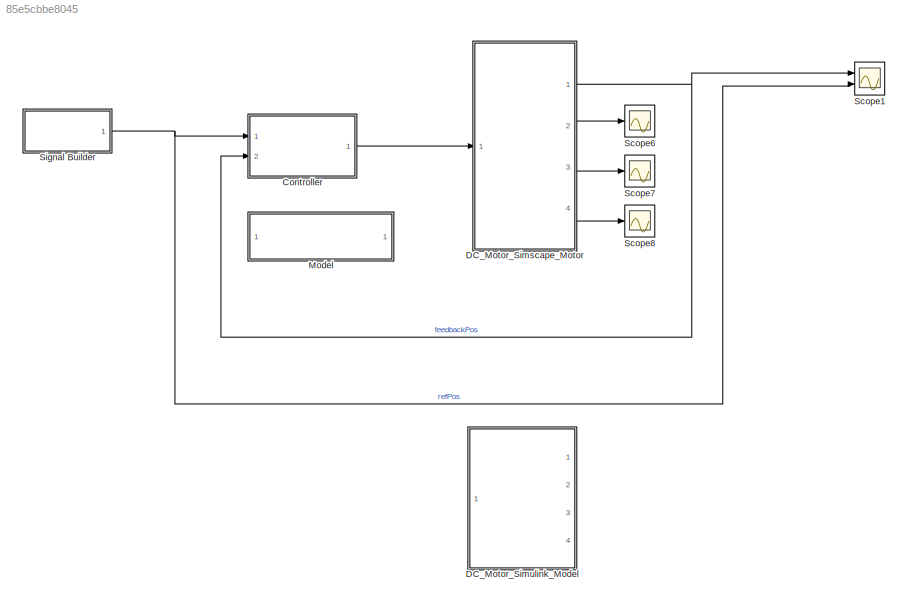
MODEL slx_85e5cbbe8045
KIND model
CONFIG AbsTol = auto
CONFIG EnableMultiTasking = on
CONFIG FixedStep = 10e-6
CONFIG MaxStep = auto
CONFIG MinStep = auto
CONFIG RelTol = 1e-3
CONFIG SampleTimeConstraint = Unconstrained
CONFIG SolverName = FixedStepAuto
CONFIG StartTime = 0.0
CONFIG StopTime = 29
WORKSPACE source: MATLAB code (in-file)
WORKSPACE B = 8.5514e-9  (= 8.5514e-09)
WORKSPACE J = 2.8586e-5  (= 2.8586e-05)
WORKSPACE K = 3.5505e-5  (= 3.5505e-05)
WORKSPACE L = 1.1997e-5  (= 1.1997e-05)
WORKSPACE R = 2.3897
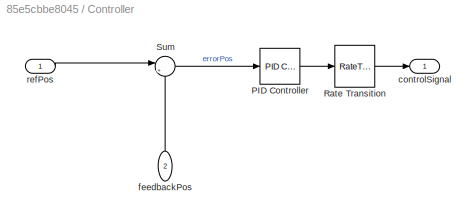
BLOCK [SubSystem] Controller
  Ports = [2, 1]
  RequestExecContextInheritance = off
  TreatAsAtomicUnit = on
BLOCK [Reference] Controller/PID Controller  REF=slpidlib/PID Controller
  Ports = [1, 1]
  SourceBlock = slpidlib/PID Controller
  SourceProductBaseCode = SL
  SourceType = PID 1dof
BLOCK [RateTransition] Controller/Rate Transition
BLOCK [Sum] Controller/Sum
  Inputs = |+-
  Ports = [2, 1]
BLOCK [Outport] Controller/controlSignal
BLOCK [Inport] Controller/feedbackPos
  NameLocation = right
  Port = 2
BLOCK [Inport] Controller/refPos
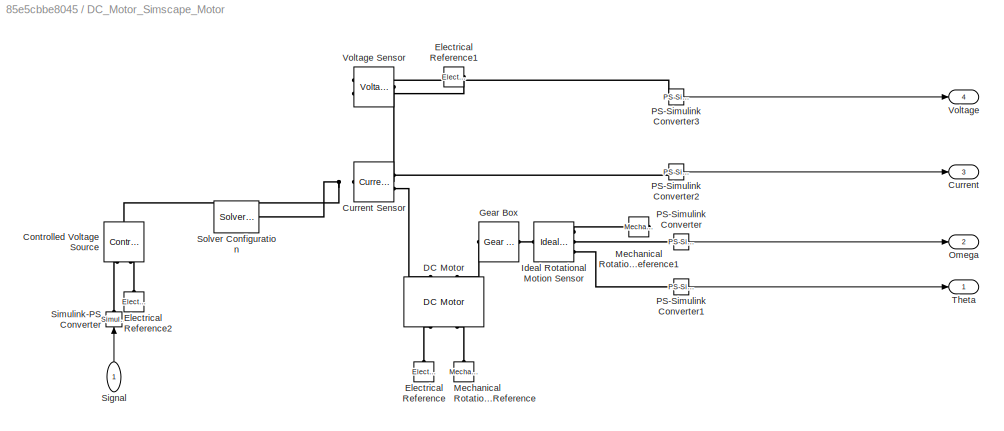
BLOCK [SubSystem] DC_Motor_Simscape_Motor
  Ports = [1, 4]
  RequestExecContextInheritance = off
BLOCK [Reference] DC_Motor_Simscape_Motor/Controlled Voltage Source  REF=fl_lib/Electrical/Electrical Sources/Controlled Voltage
Source
  NameLocation = right
  Ports = [0, 0, 0, 0, 0, 1, 2]
  SourceBlock = fl_lib/Electrical/Electrical Sources/Controlled Voltage\nSource
  SourceProductBaseCode = SS
  SourceType = Controlled Voltage\nSource
BLOCK [Outport] DC_Motor_Simscape_Motor/Current
  Port = 3
BLOCK [Reference] DC_Motor_Simscape_Motor/Current Sensor  REF=fl_lib/Electrical/Electrical Sensors/Current Sensor
  Ports = [0, 0, 0, 0, 0, 1, 2]
  SourceBlock = fl_lib/Electrical/Electrical Sensors/Current Sensor
  SourceProductBaseCode = SS
  SourceType = Current Sensor
BLOCK [Reference] DC_Motor_Simscape_Motor/DC Motor  REF=ee_lib/Electromechanical/Brushed Motors/DC Motor
  NameLocation = right
  Ports = [0, 0, 0, 0, 0, 2, 2]
  SourceBlock = ee_lib/Electromechanical/Brushed Motors/DC Motor
  SourceProductBaseCode = PS
  SourceType = DC Motor
BLOCK [Reference] DC_Motor_Simscape_Motor/Electrical Reference  REF=fl_lib/Electrical/Electrical Elements/Electrical Reference
  NameLocation = right
  Ports = [0, 0, 0, 0, 0, 1]
  SourceBlock = fl_lib/Electrical/Electrical Elements/Electrical Reference
  SourceProductBaseCode = SS
  SourceType = Electrical Reference
BLOCK [Reference] DC_Motor_Simscape_Motor/Electrical Reference1  REF=fl_lib/Electrical/Electrical Elements/Electrical Reference
  NameLocation = top
  Ports = [0, 0, 0, 0, 0, 1]
  SourceBlock = fl_lib/Electrical/Electrical Elements/Electrical Reference
  SourceProductBaseCode = SS
  SourceType = Electrical Reference
BLOCK [Reference] DC_Motor_Simscape_Motor/Electrical Reference2  REF=fl_lib/Electrical/Electrical Elements/Electrical Reference
  NameLocation = right
  Ports = [0, 0, 0, 0, 0, 1]
  SourceBlock = fl_lib/Electrical/Electrical Elements/Electrical Reference
  SourceProductBaseCode = SS
  SourceType = Electrical Reference
BLOCK [Reference] DC_Motor_Simscape_Motor/Gear Box  REF=fl_lib/Mechanical/Mechanisms/Gear Box
  Ports = [0, 0, 0, 0, 0, 1, 1]
  SourceBlock = fl_lib/Mechanical/Mechanisms/Gear Box
  SourceProductBaseCode = SS
  SourceType = Gear Box
BLOCK [Reference] DC_Motor_Simscape_Motor/Ideal Rotational Motion Sensor  REF=fl_lib/Mechanical/Mechanical Sensors/Ideal Rotational
Motion Sensor
  Ports = [0, 0, 0, 0, 0, 1, 3]
  SourceBlock = fl_lib/Mechanical/Mechanical Sensors/Ideal Rotational\nMotion Sensor
  SourceProductBaseCode = SS
  SourceType = Ideal Rotational\nMotion Sensor
BLOCK [Reference] DC_Motor_Simscape_Motor/Mechanical Rotational Reference  REF=fl_lib/Mechanical/Rotational Elements/Mechanical
Rotational Reference
  NameLocation = right
  Ports = [0, 0, 0, 0, 0, 1]
  SourceBlock = fl_lib/Mechanical/Rotational Elements/Mechanical\nRotational Reference
  SourceProductBaseCode = SS
  SourceType = Mechanical\nRotational Reference
BLOCK [Reference] DC_Motor_Simscape_Motor/Mechanical Rotational Reference1  REF=fl_lib/Mechanical/Rotational Elements/Mechanical
Rotational Reference
  NameLocation = top
  Ports = [0, 0, 0, 0, 0, 1]
  SourceBlock = fl_lib/Mechanical/Rotational Elements/Mechanical\nRotational Reference
  SourceProductBaseCode = SS
  SourceType = Mechanical\nRotational Reference
BLOCK [Outport] DC_Motor_Simscape_Motor/Omega
  Port = 2
BLOCK [Reference] DC_Motor_Simscape_Motor/PS-Simulink Converter  REF=nesl_utility/PS-Simulink
Converter
  Ports = [0, 1, 0, 0, 0, 1]
  SourceBlock = nesl_utility/PS-Simulink\nConverter
  SourceProductBaseCode = PW,SS
  SourceType = PS-Simulink\nConverter
BLOCK [Reference] DC_Motor_Simscape_Motor/PS-Simulink Converter1  REF=nesl_utility/PS-Simulink
Converter
  Ports = [0, 1, 0, 0, 0, 1]
  SourceBlock = nesl_utility/PS-Simulink\nConverter
  SourceProductBaseCode = PW,SS
  SourceType = PS-Simulink\nConverter
BLOCK [Reference] DC_Motor_Simscape_Motor/PS-Simulink Converter2  REF=nesl_utility/PS-Simulink
Converter
  Ports = [0, 1, 0, 0, 0, 1]
  SourceBlock = nesl_utility/PS-Simulink\nConverter
  SourceProductBaseCode = PW,SS
  SourceType = PS-Simulink\nConverter
BLOCK [Reference] DC_Motor_Simscape_Motor/PS-Simulink Converter3  REF=nesl_utility/PS-Simulink
Converter
  Ports = [0, 1, 0, 0, 0, 1]
  SourceBlock = nesl_utility/PS-Simulink\nConverter
  SourceProductBaseCode = PW,SS
  SourceType = PS-Simulink\nConverter
BLOCK [Inport] DC_Motor_Simscape_Motor/Signal
  NameLocation = right
BLOCK [Reference] DC_Motor_Simscape_Motor/Simulink-PS Converter  REF=nesl_utility/Simulink-PS
Converter
  NameLocation = right
  Ports = [1, 0, 0, 0, 0, 0, 1]
  SourceBlock = nesl_utility/Simulink-PS\nConverter
  SourceProductBaseCode = PW,SS
  SourceType = Simulink-PS\nConverter
BLOCK [Reference] DC_Motor_Simscape_Motor/Solver Configuration  REF=nesl_utility/Solver
Configuration
  Ports = [0, 0, 0, 0, 0, 0, 1]
  SourceBlock = nesl_utility/Solver\nConfiguration
  SourceProductBaseCode = PW,SS
  SourceType = Solver\nConfiguration
BLOCK [Outport] DC_Motor_Simscape_Motor/Theta
BLOCK [Outport] DC_Motor_Simscape_Motor/Voltage
  Port = 4
BLOCK [Reference] DC_Motor_Simscape_Motor/Voltage Sensor  REF=fl_lib/Electrical/Electrical Sensors/Voltage Sensor
  NameLocation = top
  Ports = [0, 0, 0, 0, 0, 1, 2]
  SourceBlock = fl_lib/Electrical/Electrical Sensors/Voltage Sensor
  SourceProductBaseCode = SS
  SourceType = Voltage Sensor
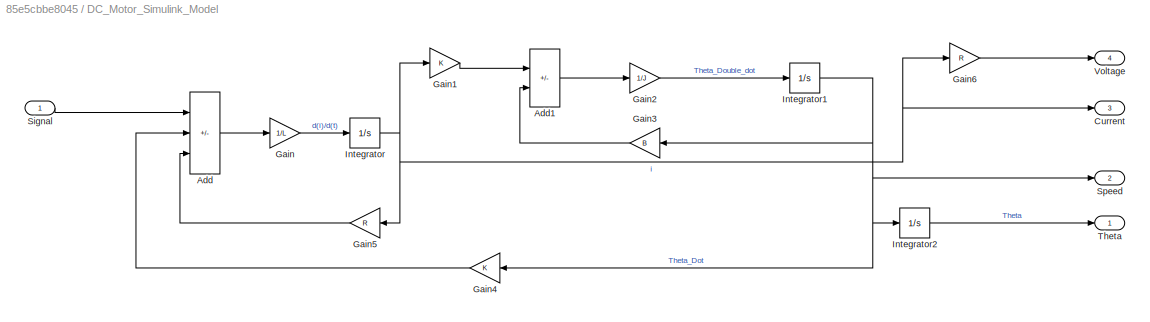
BLOCK [SubSystem] DC_Motor_Simulink_Model
  Commented = on
  Ports = [1, 4]
  RequestExecContextInheritance = off
BLOCK [Sum] DC_Motor_Simulink_Model/Add
  IconShape = rectangular
  Inputs = +--
  Ports = [3, 1]
BLOCK [Sum] DC_Motor_Simulink_Model/Add1
  IconShape = rectangular
  Inputs = +-
  Ports = [2, 1]
BLOCK [Outport] DC_Motor_Simulink_Model/Current
  Port = 3
BLOCK [Gain] DC_Motor_Simulink_Model/Gain
  Gain = 1/L
BLOCK [Gain] DC_Motor_Simulink_Model/Gain1
  Gain = K
BLOCK [Gain] DC_Motor_Simulink_Model/Gain2
  Gain = 1/J
BLOCK [Gain] DC_Motor_Simulink_Model/Gain3
  Gain = B
  NameLocation = top
BLOCK [Gain] DC_Motor_Simulink_Model/Gain4
  Gain = K
  NameLocation = top
BLOCK [Gain] DC_Motor_Simulink_Model/Gain5
  Gain = R
  NameLocation = top
BLOCK [Gain] DC_Motor_Simulink_Model/Gain6
  Gain = R
BLOCK [Integrator] DC_Motor_Simulink_Model/Integrator
  Ports = [1, 1]
BLOCK [Integrator] DC_Motor_Simulink_Model/Integrator1
  Ports = [1, 1]
BLOCK [Integrator] DC_Motor_Simulink_Model/Integrator2
  Ports = [1, 1]
BLOCK [Inport] DC_Motor_Simulink_Model/Signal
BLOCK [Outport] DC_Motor_Simulink_Model/Speed
  Port = 2
BLOCK [Outport] DC_Motor_Simulink_Model/Theta
BLOCK [Outport] DC_Motor_Simulink_Model/Voltage
  Port = 4
BLOCK [ModelReference] Model
  ModelNameDialog = Controller_Block.slx
  ModelReferenceVersion = 2.10
  Ports = []
BLOCK [Scope] Scope1
  Floating = off
  NumInputPorts = 2
  Ports = [2]
  ScopeSpecificationString = Simulink.scopes.TimeScopeBlockCfg('CurrentConfiguration', extmgr.ConfigurationSet(extmgr.Configuration('Core','General UI',true,'FigureColor',[1 1 1]),extmgr.Configuration('Core','Source UI',true),extmgr.Configuration('Sources','WiredSimulink',true,'DataLoggingVariableName','ScopeData1'),extmgr.Configuration('Visuals','Time Domain',true,'SerializedDisplays',{struct('MinYLimReal','-0.87618','MaxYLi...<+1836ch>
BLOCK [Scope] Scope6
  Floating = off
  NumInputPorts = 1
  Ports = [1]
  ScopeSpecificationString = Simulink.scopes.TimeScopeBlockCfg('CurrentConfiguration', extmgr.ConfigurationSet(extmgr.Configuration('Core','General UI',true),extmgr.Configuration('Core','Source UI',true),extmgr.Configuration('Sources','WiredSimulink',true,'DataLoggingVariableName','ScopeData2'),extmgr.Configuration('Visuals','Time Domain',true,'SerializedDisplays',{struct('MinYLimReal','-3.75','MaxYLimReal','33.75','YLabelRea...<+1383ch>
BLOCK [Scope] Scope7
  Floating = off
  NumInputPorts = 1
  Ports = [1]
  ScopeSpecificationString = Simulink.scopes.TimeScopeBlockCfg('CurrentConfiguration', extmgr.ConfigurationSet(extmgr.Configuration('Core','General UI',true),extmgr.Configuration('Core','Source UI',true),extmgr.Configuration('Sources','WiredSimulink',true,'DataLoggingVariableName','ScopeData3'),extmgr.Configuration('Visuals','Time Domain',true,'SerializedDisplays',{struct('MinYLimReal','-0.15989','MaxYLimReal','1.43898','YLab...<+1403ch>
BLOCK [Scope] Scope8
  Floating = off
  NumInputPorts = 1
  Ports = [1]
  ScopeSpecificationString = Simulink.scopes.TimeScopeBlockCfg('CurrentConfiguration', extmgr.ConfigurationSet(extmgr.Configuration('Core','General UI',true),extmgr.Configuration('Core','Source UI',true),extmgr.Configuration('Sources','WiredSimulink',true,'DataLoggingVariableName','ScopeData4'),extmgr.Configuration('Visuals','Time Domain',true,'SerializedDisplays',{struct('MinYLimReal','-0.625','MaxYLimReal','5.625','YLabelRe...<+1366ch>
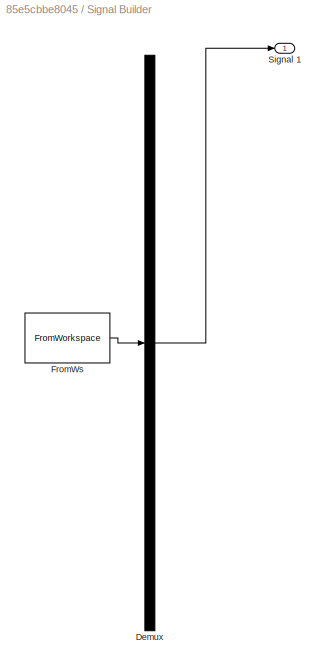
BLOCK [SubSystem] Signal Builder
  ClipboardFcn = sigbuilder_block('clipboard');
  CloseFcn = sigbuilder_block('close');
  ContinueFcn = sigbuilder_block('continue');
  CopyFcn = sigbuilder_block('copy');
  DeleteFcn = sigbuilder_block('delete');
  LoadFcn = sigbuilder_block('load');
  MaskHideContents = on
  ModelCloseFcn = sigbuilder_block('modelClose');
  NameChangeFcn = sigbuilder_block('namechange');
  OpenFcn = sigbuilder_block('open',[410.4 108 550.8 400.2 ]);
  PauseFcn = sigbuilder_block('pause');
  Ports = [0, 1]
  PreSaveFcn = sigbuilder_block('preSave');
  RequestExecContextInheritance = off
  StartFcn = sigbuilder_block('start');
  StopFcn = sigbuilder_block('stop');
  Tag = STV Subsys
BLOCK [Demux] Signal Builder/Demux
  DisplayOption = none
  Outputs = 1
  Ports = [1, 1]
  Tag = STV Demux
BLOCK [FromWorkspace] Signal Builder/FromWs
  Tag = STV FromWs
  VariableName = tuvar
BLOCK [Outport] Signal Builder/Signal 1
  Tag = STV Outport
LINE Controller/PID Controller:1 -> Controller/Rate Transition:1
LINE Controller/Rate Transition:1 -> Controller/controlSignal:1
LINE Controller/Sum:1 -> Controller/PID Controller:1
LINE Controller/feedbackPos:1 -> Controller/Sum:2
LINE Controller/refPos:1 -> Controller/Sum:1
LINE Controller:1 -> DC_Motor_Simscape_Motor:1
LINE DC_Motor_Simscape_Motor/PS-Simulink Converter1:1 -> DC_Motor_Simscape_Motor/Theta:1
LINE DC_Motor_Simscape_Motor/PS-Simulink Converter2:1 -> DC_Motor_Simscape_Motor/Current:1
LINE DC_Motor_Simscape_Motor/PS-Simulink Converter3:1 -> DC_Motor_Simscape_Motor/Voltage:1
LINE DC_Motor_Simscape_Motor/PS-Simulink Converter:1 -> DC_Motor_Simscape_Motor/Omega:1
LINE DC_Motor_Simscape_Motor/Signal:1 -> DC_Motor_Simscape_Motor/Simulink-PS Converter:1
NET DC_Motor_Simscape_Motor:1 -> Controller:2, Scope1:1
LINE DC_Motor_Simscape_Motor:2 -> Scope6:1
LINE DC_Motor_Simscape_Motor:3 -> Scope7:1
LINE DC_Motor_Simscape_Motor:4 -> Scope8:1
LINE DC_Motor_Simulink_Model/Add1:1 -> DC_Motor_Simulink_Model/Gain2:1
LINE DC_Motor_Simulink_Model/Add:1 -> DC_Motor_Simulink_Model/Gain:1
LINE DC_Motor_Simulink_Model/Gain1:1 -> DC_Motor_Simulink_Model/Add1:1
LINE DC_Motor_Simulink_Model/Gain2:1 -> DC_Motor_Simulink_Model/Integrator1:1
LINE DC_Motor_Simulink_Model/Gain3:1 -> DC_Motor_Simulink_Model/Add1:2
LINE DC_Motor_Simulink_Model/Gain4:1 -> DC_Motor_Simulink_Model/Add:2
LINE DC_Motor_Simulink_Model/Gain5:1 -> DC_Motor_Simulink_Model/Add:3
LINE DC_Motor_Simulink_Model/Gain6:1 -> DC_Motor_Simulink_Model/Voltage:1
LINE DC_Motor_Simulink_Model/Gain:1 -> DC_Motor_Simulink_Model/Integrator:1
NET DC_Motor_Simulink_Model/Integrator1:1 -> DC_Motor_Simulink_Model/Gain3:1, DC_Motor_Simulink_Model/Gain4:1, DC_Motor_Simulink_Model/Integrator2:1, DC_Motor_Simulink_Model/Speed:1
LINE DC_Motor_Simulink_Model/Integrator2:1 -> DC_Motor_Simulink_Model/Theta:1
NET DC_Motor_Simulink_Model/Integrator:1 -> DC_Motor_Simulink_Model/Current:1, DC_Motor_Simulink_Model/Gain1:1, DC_Motor_Simulink_Model/Gain5:1, DC_Motor_Simulink_Model/Gain6:1
LINE DC_Motor_Simulink_Model/Signal:1 -> DC_Motor_Simulink_Model/Add:1
NET Signal Builder:1 -> Controller:1, Scope1:2
PNET net1: DC_Motor_Simscape_Motor/Controlled Voltage Source:LConn1 -- DC_Motor_Simscape_Motor/Current Sensor:LConn1 -- DC_Motor_Simscape_Motor/Solver Configuration:RConn1 -- DC_Motor_Simscape_Motor/Voltage Sensor:LConn1
PLINE DC_Motor_Simscape_Motor/Controlled Voltage Source:RConn1 -- DC_Motor_Simscape_Motor/Simulink-PS Converter:RConn1
PLINE DC_Motor_Simscape_Motor/Controlled Voltage Source:RConn2 -- DC_Motor_Simscape_Motor/Electrical Reference2:LConn1
PLINE DC_Motor_Simscape_Motor/Current Sensor:RConn1 -- DC_Motor_Simscape_Motor/PS-Simulink Converter2:LConn1
PLINE DC_Motor_Simscape_Motor/Current Sensor:RConn2 -- DC_Motor_Simscape_Motor/DC Motor:LConn1
PLINE DC_Motor_Simscape_Motor/DC Motor:LConn2 -- DC_Motor_Simscape_Motor/Gear Box:LConn1
PLINE DC_Motor_Simscape_Motor/DC Motor:RConn1 -- DC_Motor_Simscape_Motor/Electrical Reference:LConn1
PLINE DC_Motor_Simscape_Motor/DC Motor:RConn2 -- DC_Motor_Simscape_Motor/Mechanical Rotational Reference:LConn1
PLINE DC_Motor_Simscape_Motor/Electrical Reference1:LConn1 -- DC_Motor_Simscape_Motor/Voltage Sensor:RConn2
PLINE DC_Motor_Simscape_Motor/Gear Box:RConn1 -- DC_Motor_Simscape_Motor/Ideal Rotational Motion Sensor:LConn1
PLINE DC_Motor_Simscape_Motor/Ideal Rotational Motion Sensor:RConn1 -- DC_Motor_Simscape_Motor/Mechanical Rotational Reference1:LConn1
PLINE DC_Motor_Simscape_Motor/Ideal Rotational Motion Sensor:RConn2 -- DC_Motor_Simscape_Motor/PS-Simulink Converter:LConn1
PLINE DC_Motor_Simscape_Motor/Ideal Rotational Motion Sensor:RConn3 -- DC_Motor_Simscape_Motor/PS-Simulink Converter1:LConn1
PLINE DC_Motor_Simscape_Motor/PS-Simulink Converter3:LConn1 -- DC_Motor_Simscape_Motor/Voltage Sensor:RConn1
note: NET lines group one-source signal fan-out (src -> all destinations, sorted); 1:1 wires keep LINE; PNET lines group multi-terminal physical nets as a canonical sorted terminal list (undirected conserving connections); 2-terminal nets keep the pairwise PLINE form
